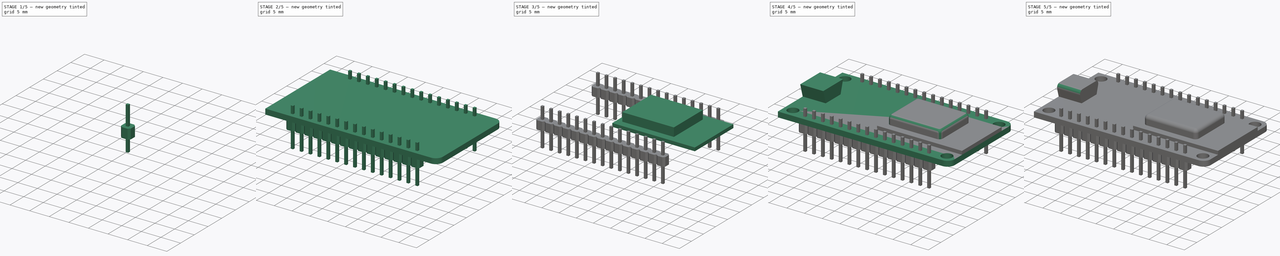
[diagram: build sequence overview — one tinted view per stage of 5, left to right]
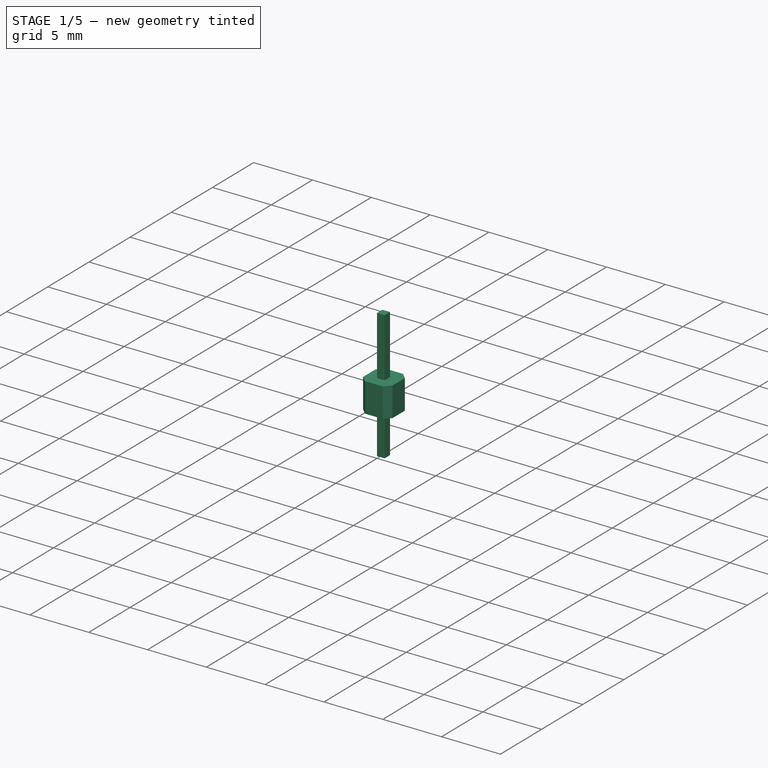
[diagram: stage 1 of 5 — iso view after this stage's code; geometry added in this stage tinted green]
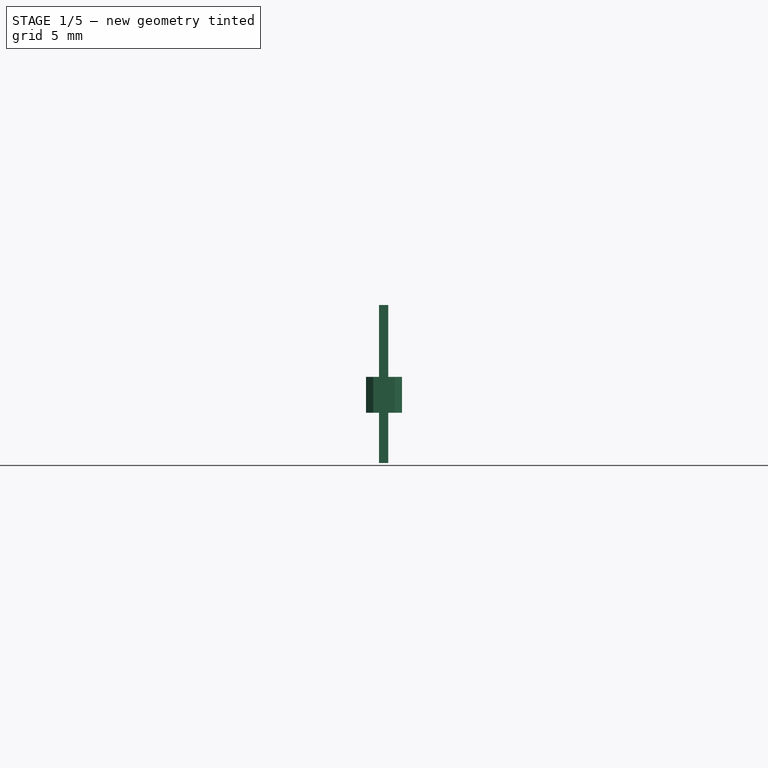
[diagram: stage 1 of 5 — front view after this stage's code; geometry added in this stage tinted green]
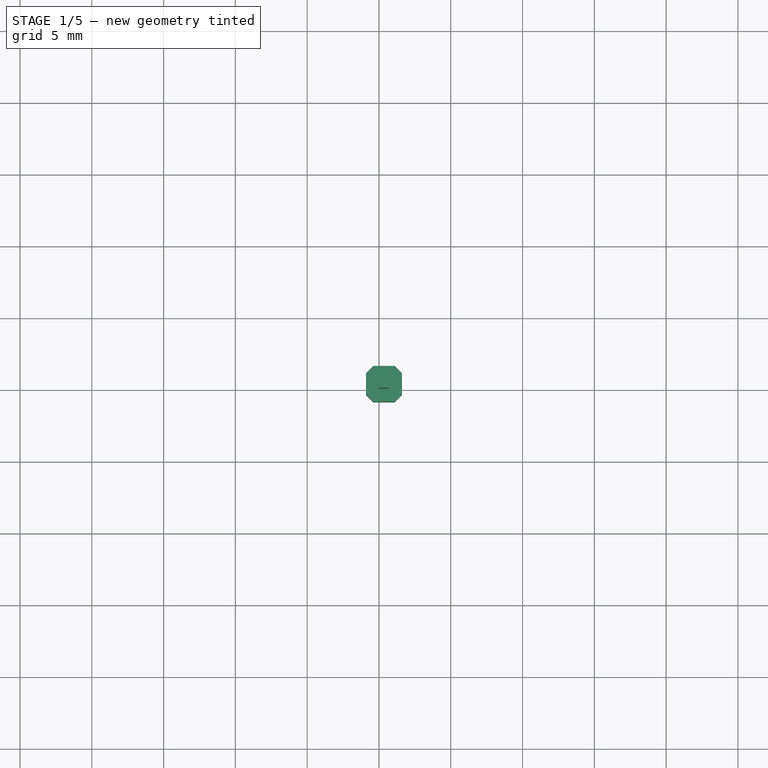
[diagram: stage 1 of 5 — top view after this stage's code; geometry added in this stage tinted green]
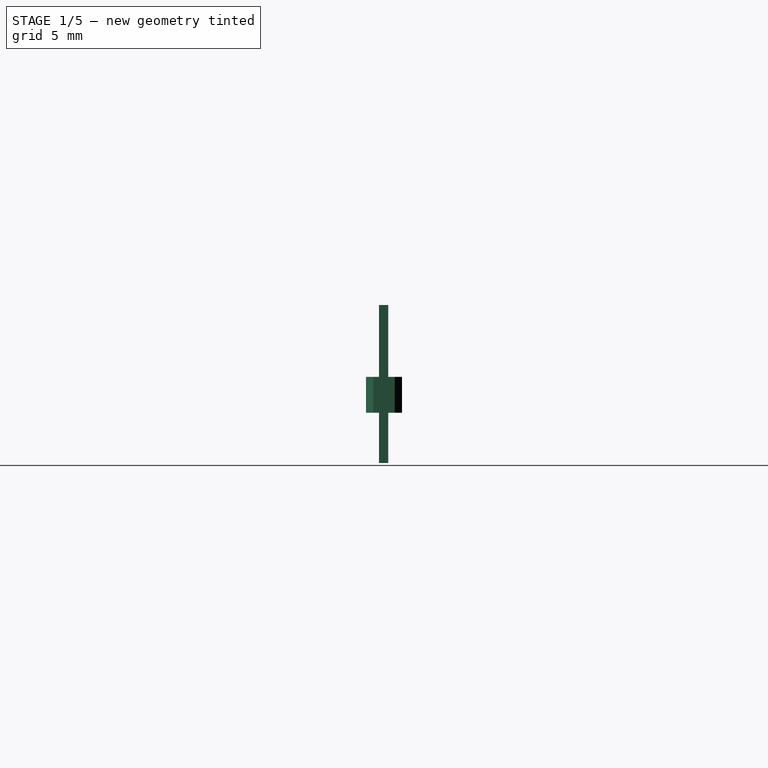
[diagram: stage 1 of 5 — right view after this stage's code; geometry added in this stage tinted green]
FCSTD DOCUMENT  (FreeCAD 0.16R5942 (Git))
Label: nodemcu
License: All rights reserved
LicenseURL: http://es.wikipedia.org/wiki/Todos_los_derechos_reservados
objects: Part::FeaturePython×6, Sketcher::SketchObject×5, Part::Box×3, PartDesign::Fillet×3, Part::Extrusion×3, App::DocumentObjectGroup×3, PartDesign::Pocket×2, Part::Compound×2, PartDesign::Chamfer×1, Part::Feature×1
note: 28 computed .brp shape members not serialized (recipe doc carries the construction recipe); baked Part::Feature solids carry a one-line shape summary decoded from their .brp

FEATURE [App::DocumentObjectGroup] Grupo  label="ESP12"
  Group = -> [Extrude_Sketch001,Extrude_Sketch002,Fillet001]
FEATURE [Part::Box] Box001  label="Cubo001"
  Height = 11
  Length = 0.65
  Placement = pos=(0,0,-2) rot=(0,0,1;0rad)
  Width = 0.65
FEATURE [Part::Box] Box002  label="Cubo002"
  Height = 2.5
  Length = 2.5
  Placement = pos=(-0.9,-0.9,1.5) rot=(0,0,1;0rad)
  Width = 2.5
FEATURE [PartDesign::Chamfer] Chamfer
  Base = -> Box002 [Edge1,Edge5,Edge7,Edge3]
  Placement = pos=(-0.9,-0.9,1.5) rot=(0,0,1;0rad)
  Size = 0.5
FEATURE [Part::Compound] Compound  label="pin"
  Links = -> [Box001,Chamfer]
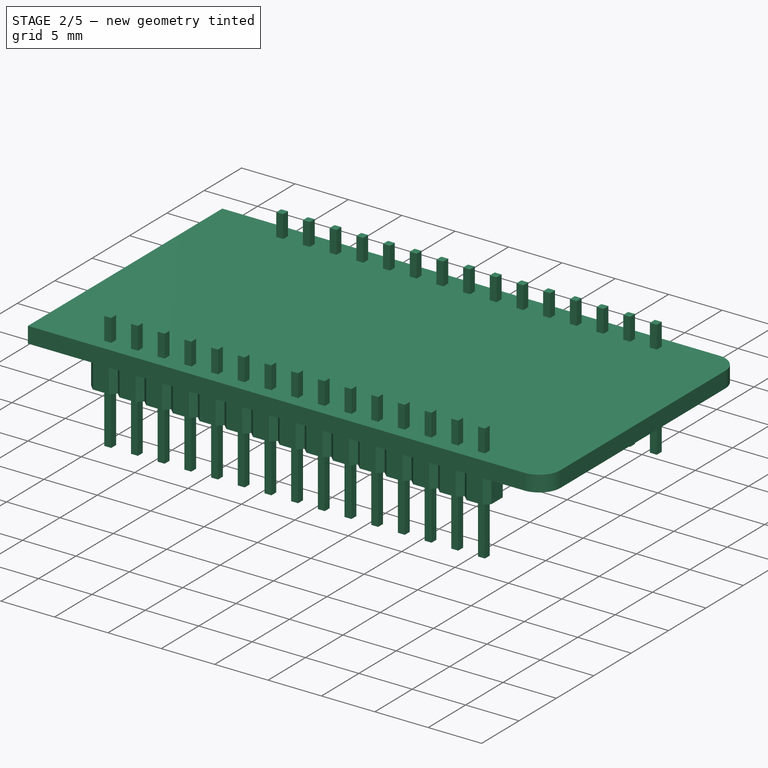
[diagram: stage 2 of 5 — iso view after this stage's code; geometry added in this stage tinted green]
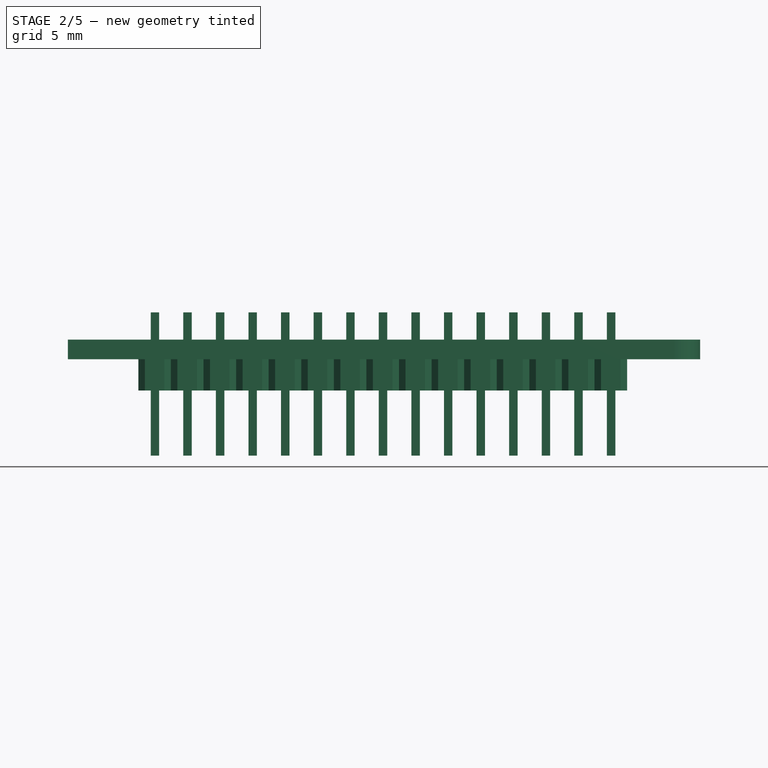
[diagram: stage 2 of 5 — front view after this stage's code; geometry added in this stage tinted green]
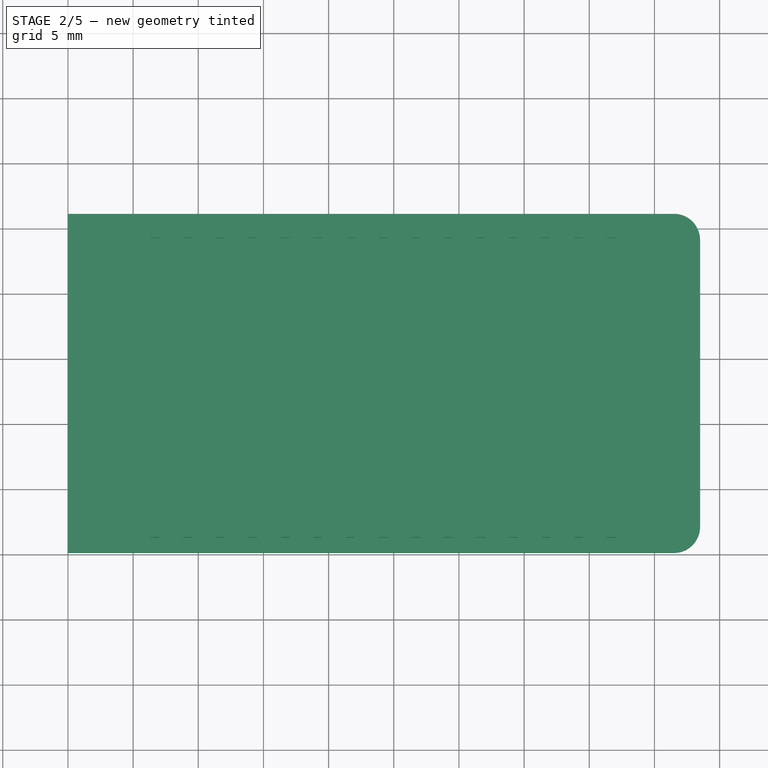
[diagram: stage 2 of 5 — top view after this stage's code; geometry added in this stage tinted green]
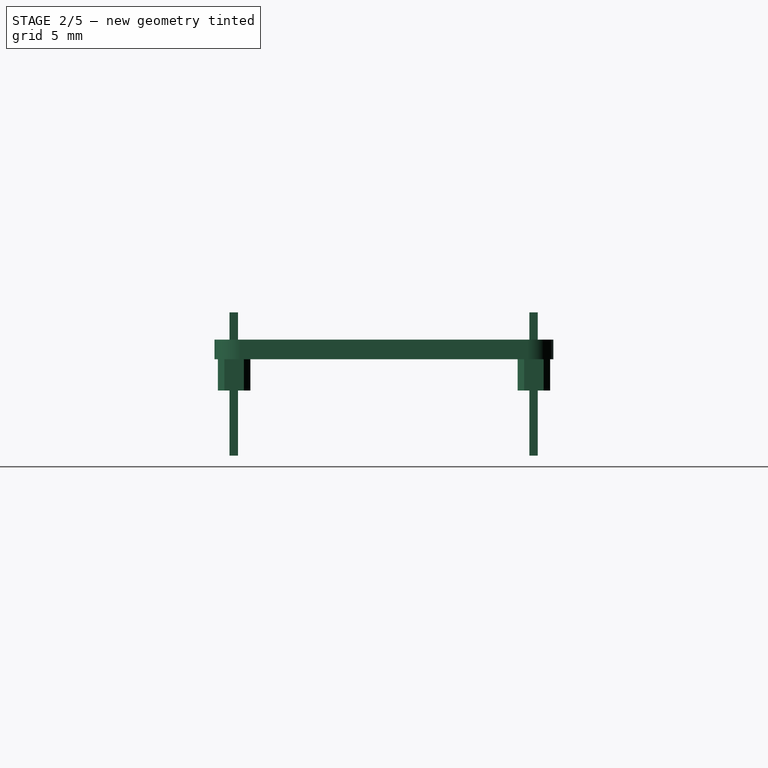
[diagram: stage 2 of 5 — right view after this stage's code; geometry added in this stage tinted green]
FEATURE [Part::Box] Box  label="Cubo"
  Height = 1.5
  Length = 48.5
  Width = 26
FEATURE [PartDesign::Fillet] Fillet
  Base = -> Box [Edge5,Edge7]
  Radius = 2
FEATURE [Part::FeaturePython] Array  # Draft array (typed FeaturePython)
  Angle = 360
  ArrayType = 0
  Axis = (0,0,1)
  Base = -> Compound
  Center = (0,0,0)
  Fuse = false
  IntervalAxis = (0,0,0)
  IntervalX = (2.5,0,0)
  IntervalY = (0,23,0)
  IntervalZ = (0,0,0)
  NumberPolar = 1
  NumberX = 15
  NumberY = 2
  NumberZ = 1
  Placement = pos=(42,1.15,1.6) rot=(0,1,0;3.14159rad)
FEATURE [Part::FeaturePython] Clone004  label="Clone of Array"  # Draft clone (typed FeaturePython)
  Objects = -> [Array]
  Placement = pos=(42,1.15,1.6) rot=(0,1,0;3.14159rad)
  Scale = (1,1,1)
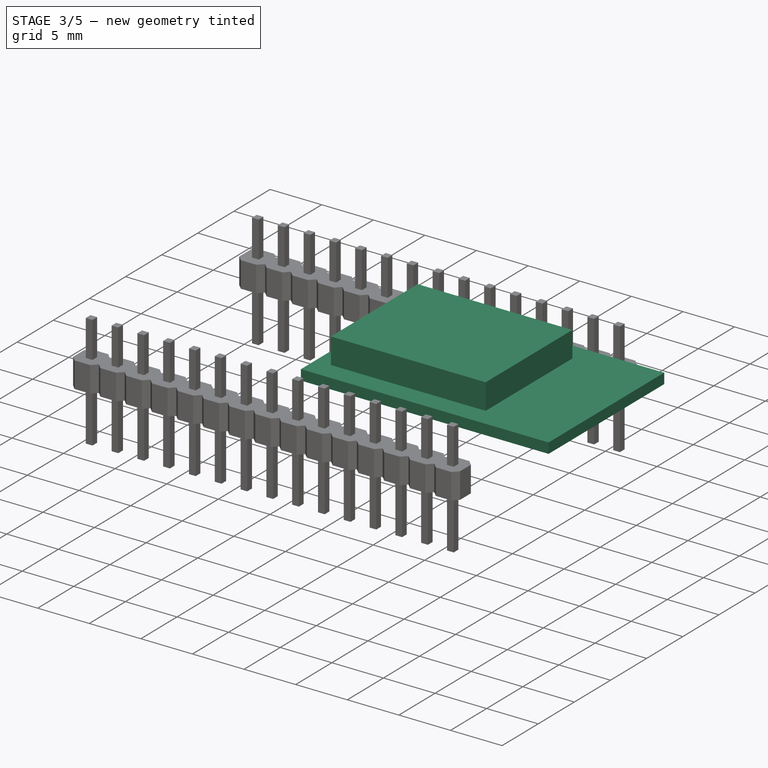
[diagram: stage 3 of 5 — iso view after this stage's code; geometry added in this stage tinted green]
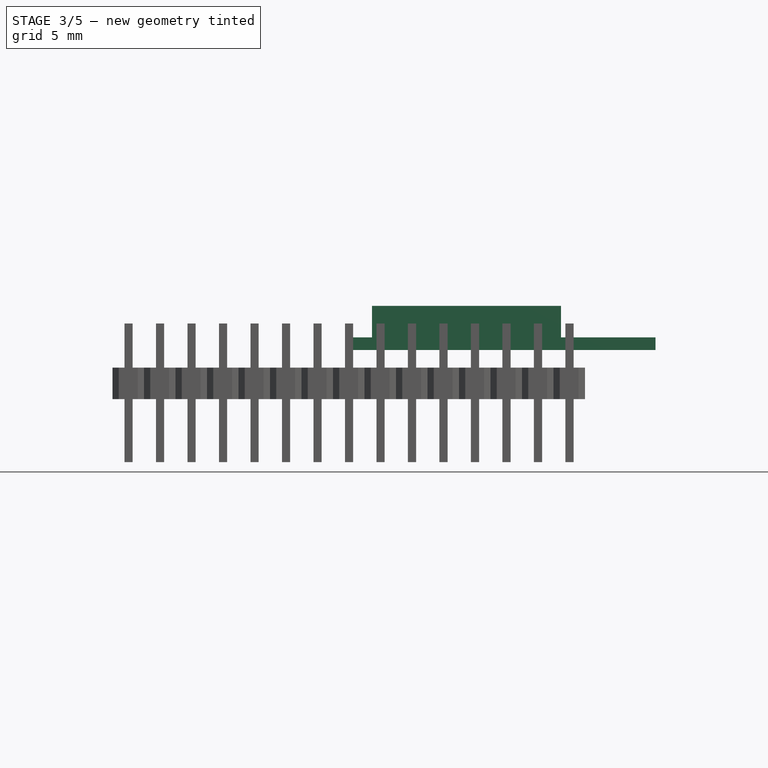
[diagram: stage 3 of 5 — front view after this stage's code; geometry added in this stage tinted green]
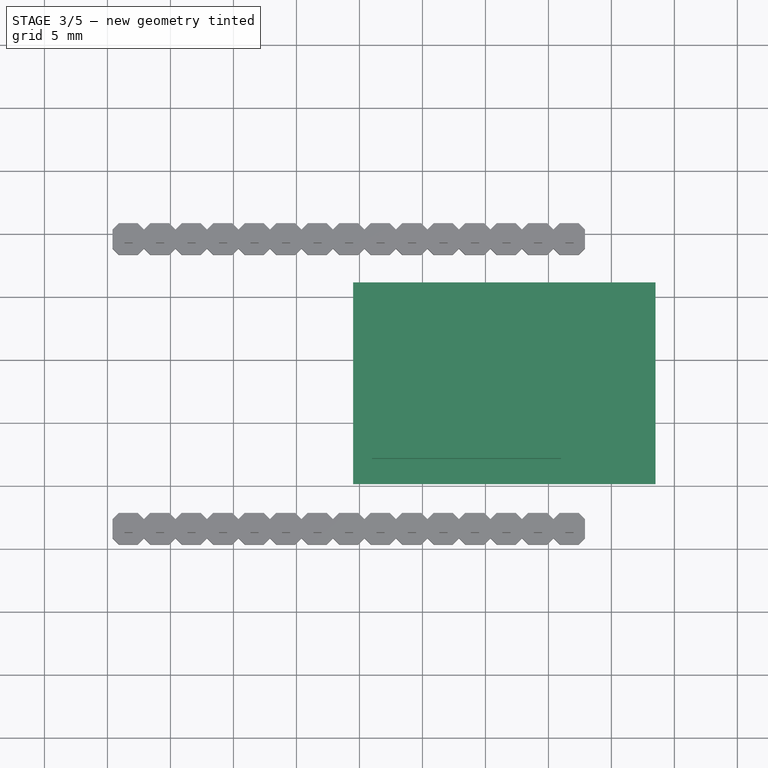
[diagram: stage 3 of 5 — top view after this stage's code; geometry added in this stage tinted green]
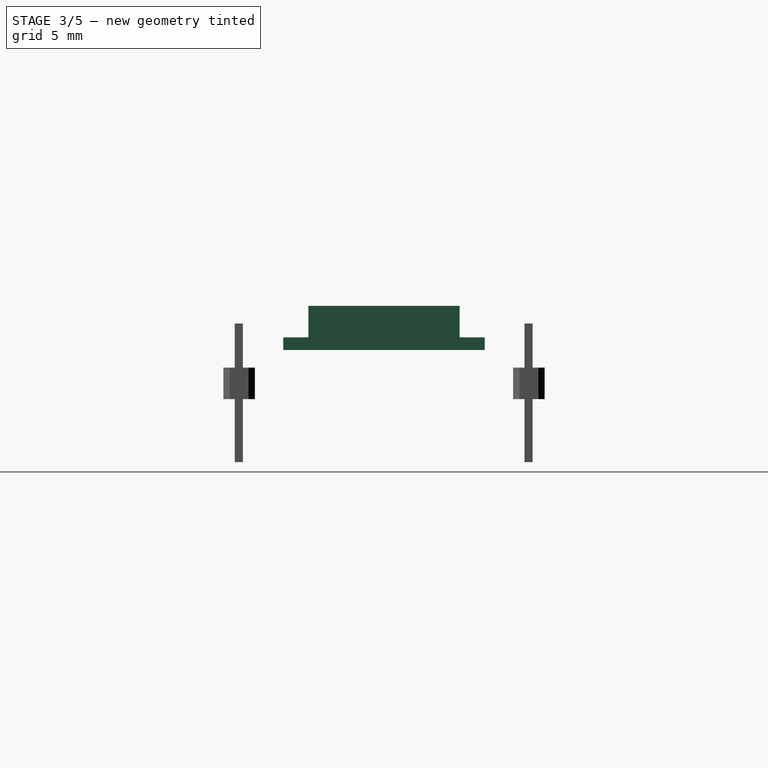
[diagram: stage 3 of 5 — right view after this stage's code; geometry added in this stage tinted green]
FEATURE [Sketcher::SketchObject] Sketch
  ExternalGeometry = -> [Fillet]
  Placement = pos=(0,0,1.5) rot=(0,0,1;0rad)
  Support = -> Fillet [Face2]
  sketch-geometry (12):
    g0: LineSegment [constr] StartX=2.5 StartY=23.5 StartZ=0 EndX=46 EndY=23.5 EndZ=0
    g1: LineSegment [constr] StartX=46 StartY=23.5 StartZ=0 EndX=46 EndY=2.5 EndZ=0
    g2: LineSegment [constr] StartX=46 StartY=2.5 StartZ=0 EndX=2.5 EndY=2.5 EndZ=0
    g3: LineSegment [constr] StartX=2.5 StartY=2.5 StartZ=0 EndX=2.5 EndY=23.5 EndZ=0
    g4: Circle CenterX=2.5 CenterY=23.5 CenterZ=0 NormalX=0 NormalY=0 NormalZ=1 Radius=1.5
    g5: Circle CenterX=46 CenterY=23.5 CenterZ=0 NormalX=0 NormalY=0 NormalZ=1 Radius=1.5
    g6: Circle CenterX=46 CenterY=2.5 CenterZ=0 NormalX=0 NormalY=0 NormalZ=1 Radius=1.5
    g7: Circle CenterX=2.5 CenterY=2.5 CenterZ=0 NormalX=0 NormalY=0 NormalZ=1 Radius=1.5
    g8: LineSegment [constr] StartX=46 StartY=23.5 StartZ=0 EndX=46 EndY=26 EndZ=0
    g9: LineSegment [constr] StartX=46 StartY=23.5 StartZ=0 EndX=48.5 EndY=23.5 EndZ=0
    g10: LineSegment [constr] StartX=2.5 StartY=2.5 StartZ=0 EndX=0 EndY=2.5 EndZ=0
    g11: LineSegment [constr] StartX=2.5 StartY=2.5 StartZ=0 EndX=2.5 EndY=0 EndZ=0
  constraints (32):
    c: Coincident(g0,g1)
    c: Coincident(g1,g2)
    c: Coincident(g2,g3)
    c: Coincident(g3,g0)
    c: Horizontal(g0)
    c: Horizontal(g2)
    c: Vertical(g1)
    c: Vertical(g3)
    c: Coincident(g4,g0)
    c: Coincident(g5,g0)
    c: Coincident(g6,g1)
    c: Coincident(g7,g2)
    c: Radius(g4) = 1.5
    c: Equal(g4,g5)
    c: Equal(g4,g6)
    c: Equal(g4,g7)
    c: Distance(g0) = 43.5
    c: Distance(g1) = 21
    c: Coincident(g8,g0)
    c: Vertical(g8)
    c: PointOnObject(g9,g-6)
    c: Horizontal(g9)
    c: Coincident(g10,g2)
    c: PointOnObject(g10,g-4)
    c: Horizontal(g10)
    c: Coincident(g11,g2)
    c: PointOnObject(g11,g-5)
    c: Vertical(g11)
    c: Equal(g11,g8)
    c: Coincident(g0,g9)
    c: Equal(g9,g10)
    c: PointOnObject(g8,g-3)
FEATURE [PartDesign::Pocket] Pocket
  Length = 5
  Sketch = -> Sketch
  Type = 0
FEATURE [Sketcher::SketchObject] Sketch001
  ExternalGeometry = -> [Pocket]
  Placement = pos=(0,0,1.5) rot=(0,0,1;0rad)
  Support = -> Pocket [Face2]
  sketch-geometry (6):
    g0: LineSegment StartX=48.5 StartY=5 StartZ=0 EndX=24.5 EndY=5 EndZ=0
    g1: LineSegment StartX=24.5 StartY=5 StartZ=0 EndX=24.5 EndY=21 EndZ=0
    g2: LineSegment StartX=24.5 StartY=21 StartZ=0 EndX=48.5 EndY=21 EndZ=0
    g3: LineSegment StartX=48.5 StartY=21 StartZ=0 EndX=48.5 EndY=5 EndZ=0
    g4: LineSegment [constr] StartX=24.5 StartY=5 StartZ=0 EndX=48.5 EndY=2 EndZ=0
    g5: LineSegment [constr] StartX=48.5 StartY=24 StartZ=0 EndX=24.5 EndY=21 EndZ=0
  constraints (16):
    c: Coincident(g0,g1)
    c: Coincident(g1,g2)
    c: Coincident(g2,g3)
    c: Coincident(g3,g0)
    c: Horizontal(g0)
    c: Horizontal(g2)
    c: Vertical(g1)
    c: Vertical(g3)
    c: Distance(g3) = 16
    c: Distance(g2) = 24
    c: PointOnObject(g2,g-3)
    c: Coincident(g4,g0)
    c: Coincident(g4,g-3)
    c: Coincident(g5,g-3)
    c: Coincident(g5,g1)
    c: Equal(g5,g4)
FEATURE [Part::Extrusion] Extrude_Sketch001  label="Sketch001_Extrude"
  Base = -> Sketch001
  Dir = (0,0,1)
  Solid = true
FEATURE [Sketcher::SketchObject] Sketch002
  ExternalGeometry = -> [Extrude_Sketch001]
  Placement = pos=(0,0,2.5) rot=(0,0,1;0rad)
  Support = -> Extrude_Sketch001 [Face6]
  sketch-geometry (6):
    g0: LineSegment StartX=26 StartY=19 StartZ=0 EndX=41 EndY=19 EndZ=0
    g1: LineSegment StartX=41 StartY=19 StartZ=0 EndX=41 EndY=7 EndZ=0
    g2: LineSegment StartX=41 StartY=7 StartZ=0 EndX=26 EndY=7 EndZ=0
    g3: LineSegment StartX=26 StartY=7 StartZ=0 EndX=26 EndY=19 EndZ=0
    g4: LineSegment [constr] StartX=26 StartY=19 StartZ=0 EndX=26 EndY=21 EndZ=0
    g5: LineSegment [constr] StartX=26 StartY=7 StartZ=0 EndX=26 EndY=5 EndZ=0
  constraints (18):
    c: Coincident(g0,g1)
    c: Coincident(g1,g2)
    c: Coincident(g2,g3)
    c: Coincident(g3,g0)
    c: Horizontal(g0)
    c: Horizontal(g2)
    c: Vertical(g1)
    c: Vertical(g3)
    c: Distance(g0) = 15
    c: Distance(g1) = 12
    c: Coincident(g4,g0)
    c: PointOnObject(g4,g-4)
    c: Vertical(g4)
    c: Coincident(g5,g2)
    c: PointOnObject(g5,g-5)
    c: Vertical(g5)
    c: Equal(g5,g4)
    c: Distance(g2,g-3) = 1.5
FEATURE [Part::Extrusion] Extrude_Sketch002  label="Sketch002_Extrude"
  Base = -> Sketch002
  Dir = (0,0,2.5)
  Solid = true
FEATURE [Part::FeaturePython] Clone003  label="Clone of Sketch001_Extrude"  # Draft clone (typed FeaturePython)
  Objects = -> [Extrude_Sketch001]
  Scale = (1,1,1)
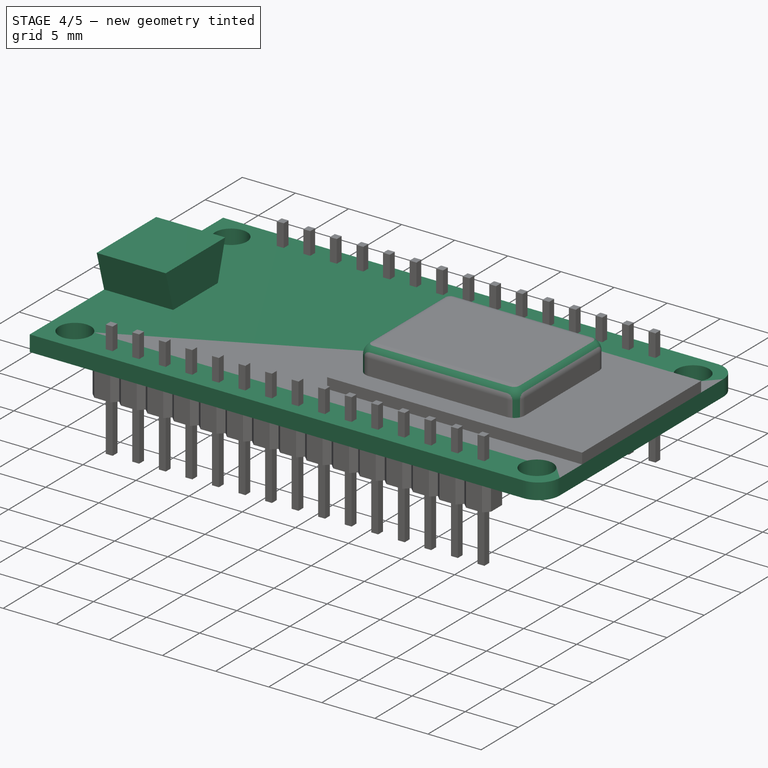
[diagram: stage 4 of 5 — iso view after this stage's code; geometry added in this stage tinted green]
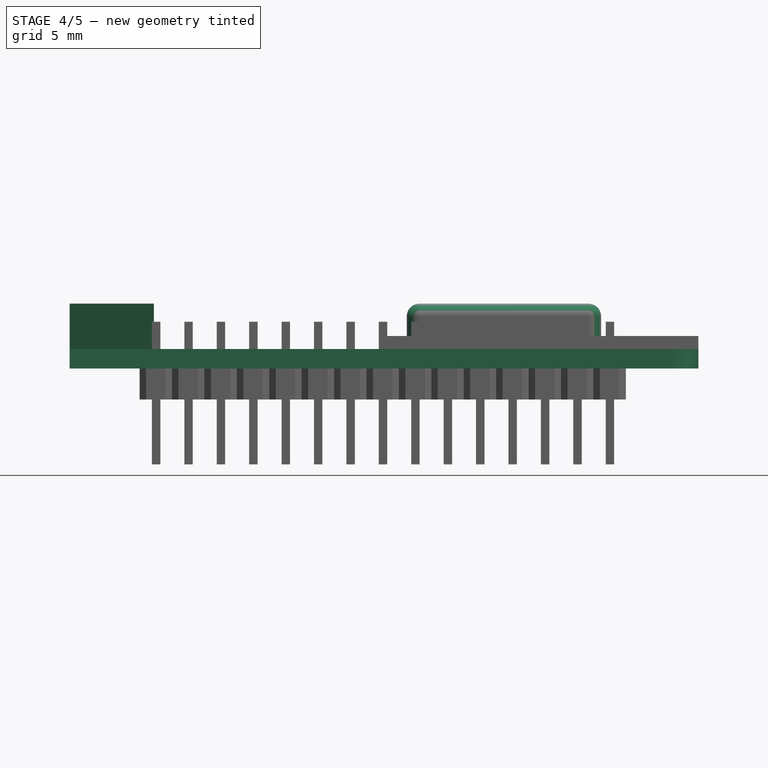
[diagram: stage 4 of 5 — front view after this stage's code; geometry added in this stage tinted green]
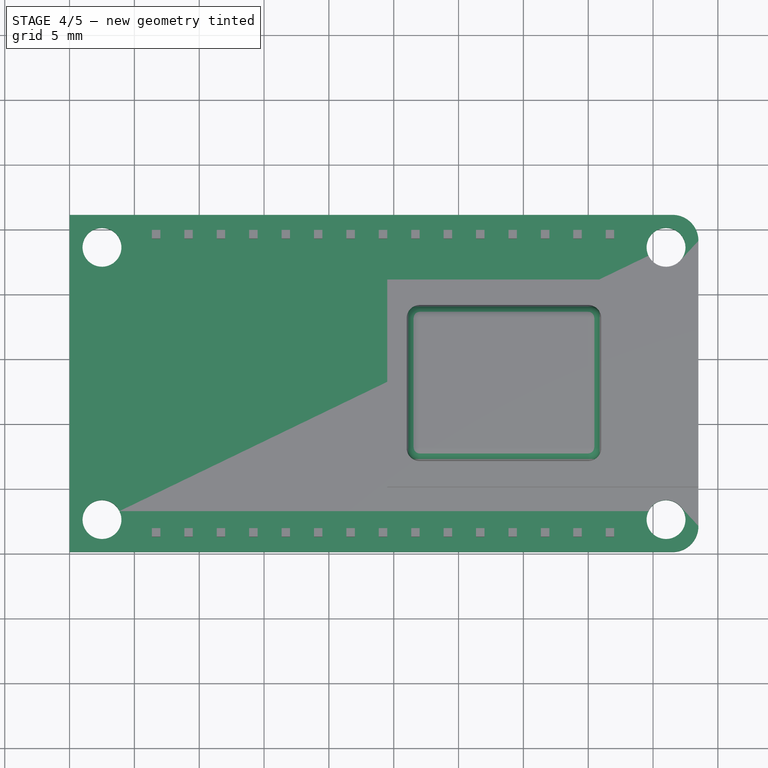
[diagram: stage 4 of 5 — top view after this stage's code; geometry added in this stage tinted green]
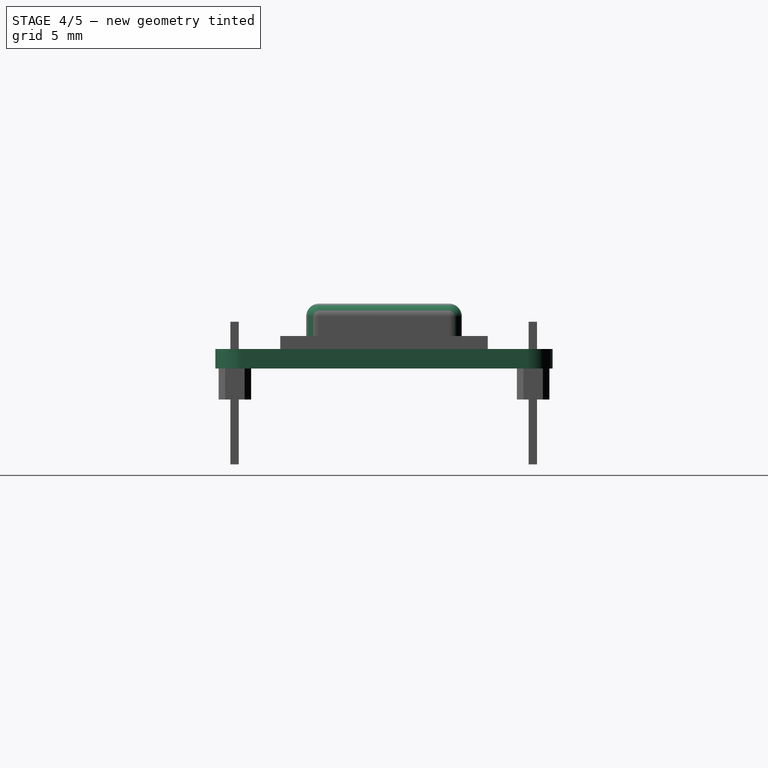
[diagram: stage 4 of 5 — right view after this stage's code; geometry added in this stage tinted green]
FEATURE [PartDesign::Fillet] Fillet001
  Base = -> Extrude_Sketch002 [Edge8,Edge5,Edge2,Edge1,Edge4,Edge7,Edge10,Edge12]
  Radius = 1
FEATURE [App::DocumentObjectGroup] Grupo001  label="pines"
  Group = -> [Box001,Box002,Chamfer,Compound,Array]
FEATURE [Sketcher::SketchObject] Sketch003
  ExternalGeometry = -> [Pocket]
  Placement = pos=(0,0,0) rot=(0.57735,-0.57735,-0.57735;2.0944rad)
  Support = -> Pocket [Face7]
  sketch-geometry (6):
    g0: LineSegment StartX=-17 StartY=5 StartZ=0 EndX=-9 EndY=5 EndZ=0
    g1: LineSegment StartX=-9 StartY=5 StartZ=0 EndX=-10 EndY=1.5 EndZ=0
    g2: LineSegment StartX=-10 StartY=1.5 StartZ=0 EndX=-16 EndY=1.5 EndZ=0
    g3: LineSegment StartX=-16 StartY=1.5 StartZ=0 EndX=-17 EndY=5 EndZ=0
    g4: LineSegment [constr] StartX=-17 StartY=5 StartZ=0 EndX=-26 EndY=1.5 EndZ=0
    g5: LineSegment [constr] StartX=-9 StartY=5 StartZ=0 EndX=0 EndY=1.5 EndZ=0
  constraints (16):
    c: Horizontal(g0)
    c: Coincident(g0,g1)
    c: Coincident(g1,g2)
    c: Horizontal(g2)
    c: Coincident(g2,g3)
    c: Coincident(g3,g0)
    c: Equal(g1,g3)
    c: Distance(g2) = 6
    c: Distance(g0) = 8
    c: Distance(g1,g0) = 3.5
    c: PointOnObject(g1,g-3)
    c: Coincident(g4,g0)
    c: Coincident(g4,g-3)
    c: Coincident(g5,g0)
    c: Coincident(g5,g-3)
    c: Equal(g5,g4)
FEATURE [Part::Extrusion] Extrude_Sketch003  label="Sketch003_Extrude"
  Base = -> Sketch003
  Dir = (6.5,0,0)
  Solid = true
FEATURE [Part::FeaturePython] Clone001  label="Clone of Pocket"  # Draft clone (typed FeaturePython)
  Objects = -> [Pocket]
  Scale = (1,1,1)
FEATURE [Part::FeaturePython] Clone002  label="Clone of Fillet001"  # Draft clone (typed FeaturePython)
  Objects = -> [Fillet001]
  Scale = (1,1,1)
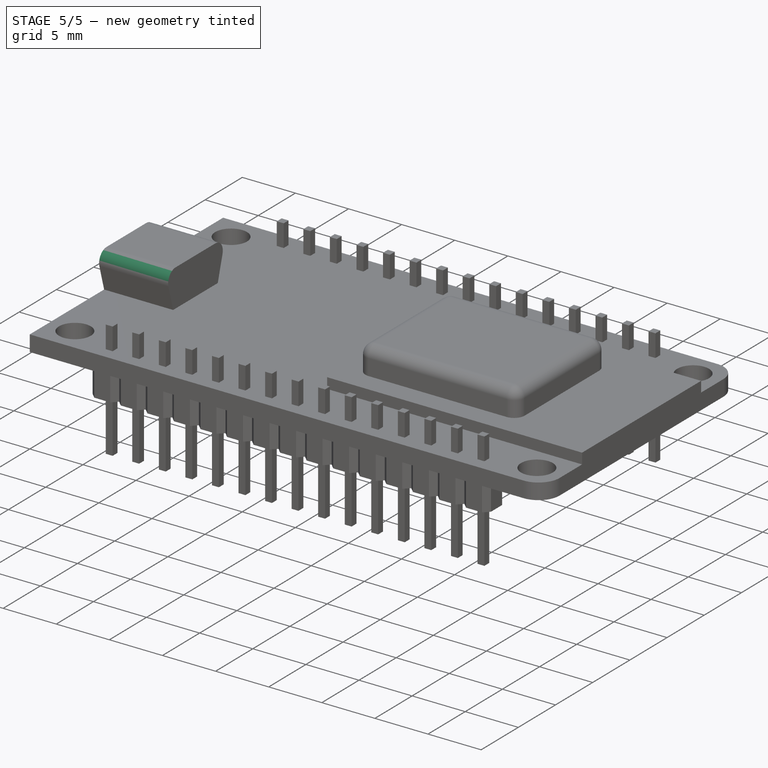
[diagram: stage 5 of 5 — iso view after this stage's code; geometry added in this stage tinted green]
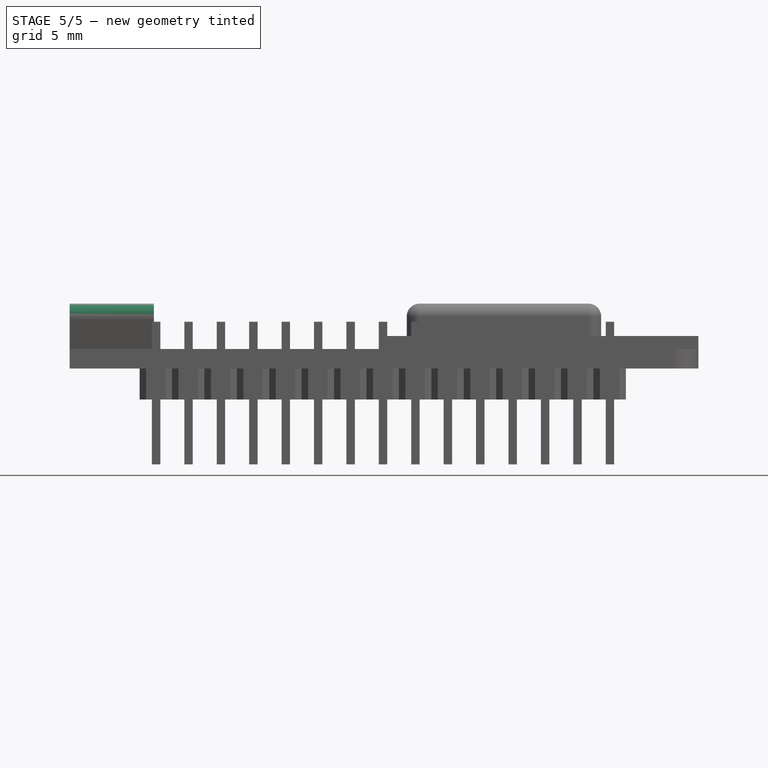
[diagram: stage 5 of 5 — front view after this stage's code; geometry added in this stage tinted green]
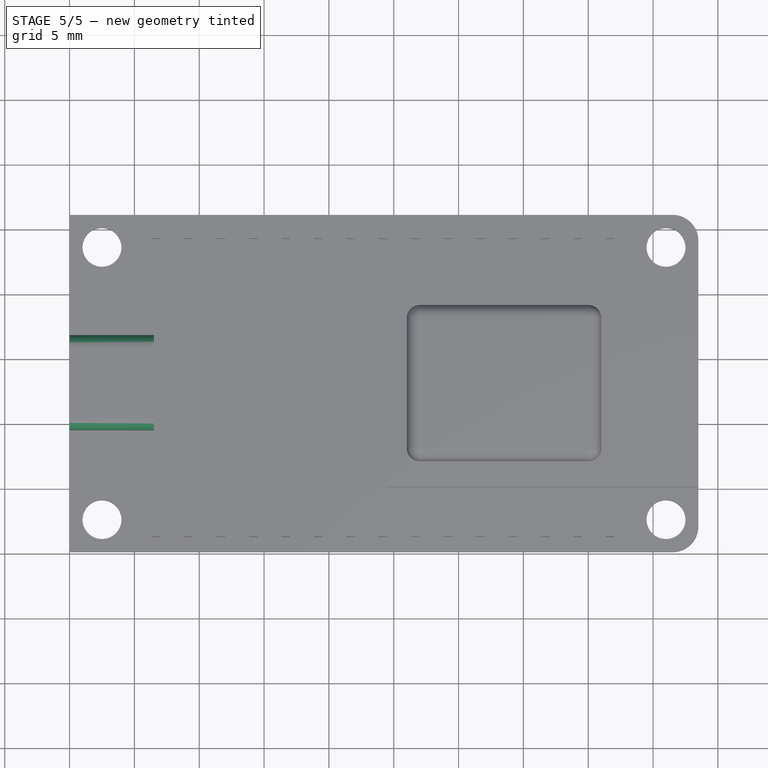
[diagram: stage 5 of 5 — top view after this stage's code; geometry added in this stage tinted green]
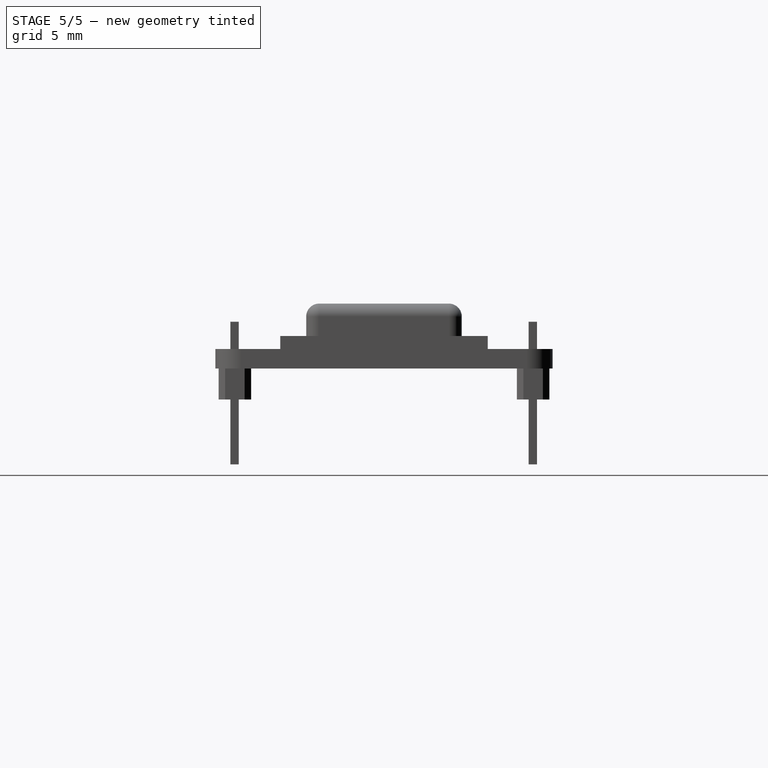
[diagram: stage 5 of 5 — right view after this stage's code; geometry added in this stage tinted green]
FEATURE [Sketcher::SketchObject] Sketch004
  ExternalGeometry = -> [Extrude_Sketch003]
  Placement = pos=(0,0,0) rot=(0.57735,-0.57735,-0.57735;2.0944rad)
  Support = -> Extrude_Sketch003 [Face5]
  sketch-geometry (4):
    g0: LineSegment StartX=-15.6329 StartY=4.29526 StartZ=0 EndX=-10.593 EndY=4.29526 EndZ=0
    g1: LineSegment StartX=-10.593 StartY=4.29526 StartZ=0 EndX=-11.1805 EndY=2.23917 EndZ=0
    g2: LineSegment StartX=-11.1805 StartY=2.23917 StartZ=0 EndX=-15.0454 EndY=2.23917 EndZ=0
    g3: LineSegment StartX=-15.0454 StartY=2.23917 StartZ=0 EndX=-15.6329 EndY=4.29526 EndZ=0
  constraints (8):
    c: Horizontal(g0)
    c: Coincident(g0,g1)
    c: Coincident(g1,g2)
    c: Horizontal(g2)
    c: Coincident(g2,g3)
    c: Coincident(g3,g0)
    c: Parallel(g3,g-4)
    c: Parallel(g1,g-5)
FEATURE [PartDesign::Pocket] Pocket001
  Length = 5
  Sketch = -> Sketch004
  Type = 0
FEATURE [PartDesign::Fillet] Fillet002
  Base = -> Pocket001 [Edge1,Edge2]
  Radius = 1
FEATURE [App::DocumentObjectGroup] Grupo002  label="ConUSB"
  Group = -> [Extrude_Sketch003,Fillet002,Pocket001]
FEATURE [Part::FeaturePython] Clone  label="Clone of Fillet002"  # Draft clone (typed FeaturePython)
  Objects = -> [Fillet002]
  Scale = (1,1,1)
FEATURE [Part::Compound] Compound001  label="NodeMCU-Compound"
  Links = -> [Clone,Clone003,Clone001,Clone002,Clone004]
FEATURE [Part::Feature] Compound001001  label="NodeMCU"
  shape: bbox 48.5 x 26 x 12.4 mm, 529 faces, 64 solids (baked)
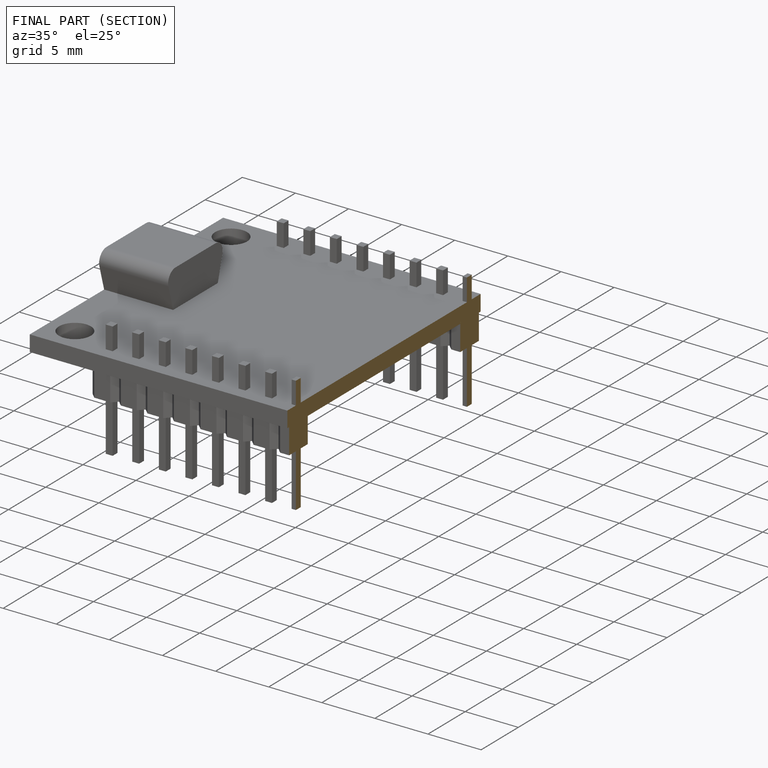
[diagram: finished part — half-section view (interior)]
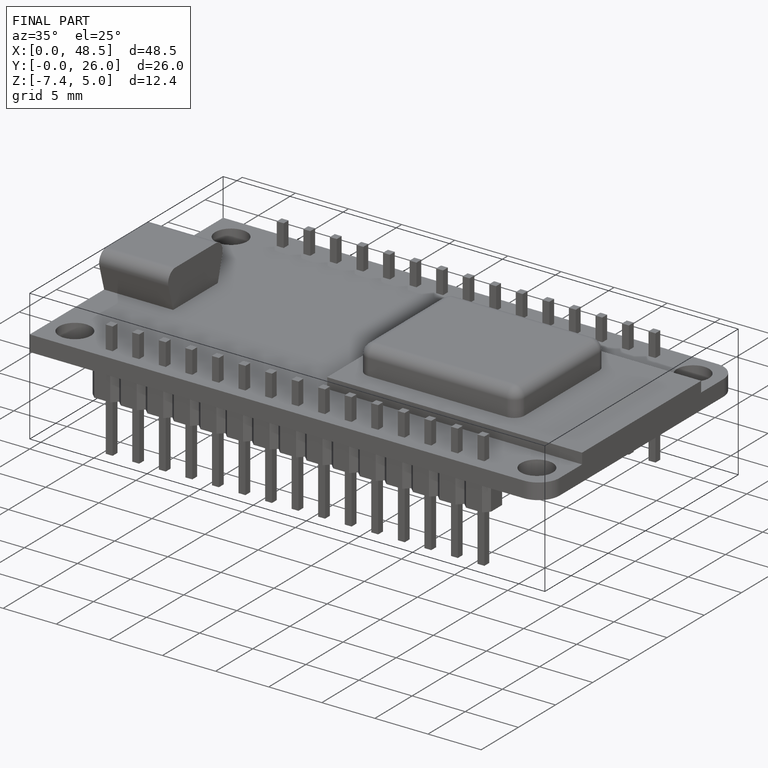
[diagram: finished part — iso view with bounding-box wireframe]
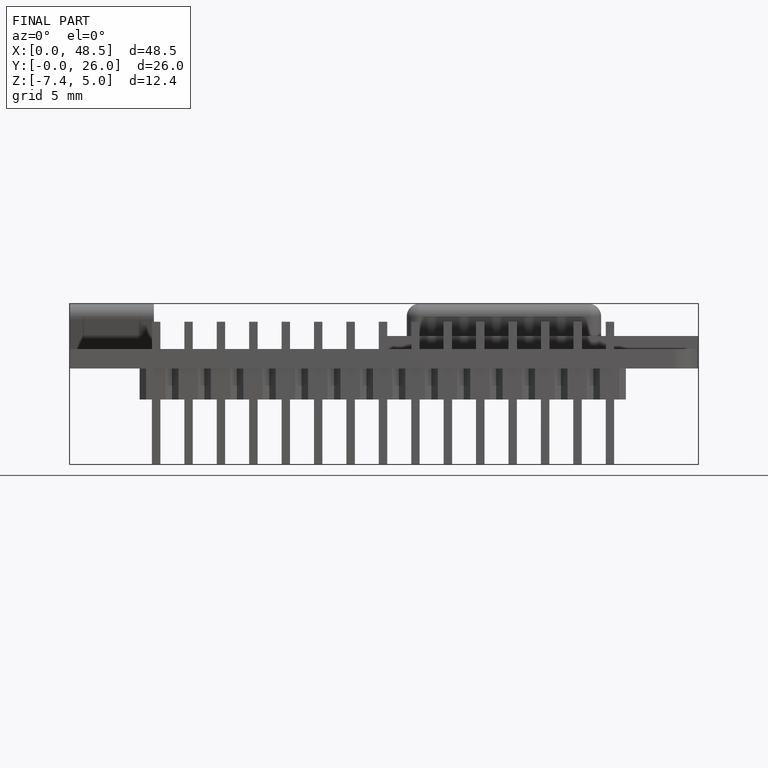
[diagram: finished part — front view with bounding-box wireframe]
